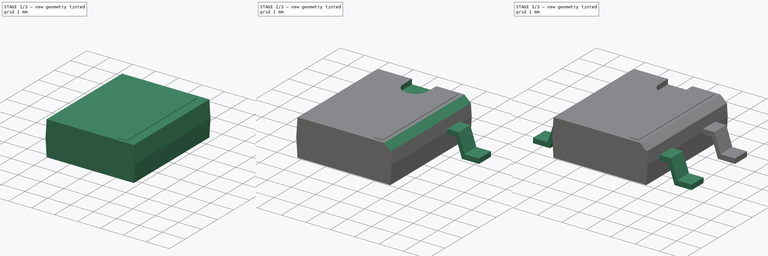
[diagram: build sequence overview — one tinted view per stage of 3, left to right]
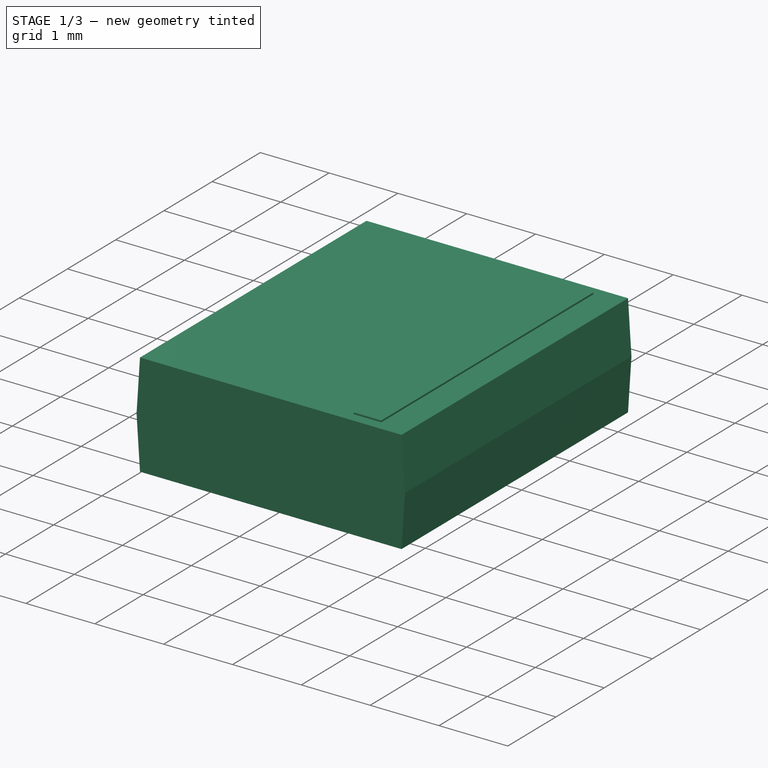
[diagram: stage 1 of 3 — iso view after this stage's code; geometry added in this stage tinted green]
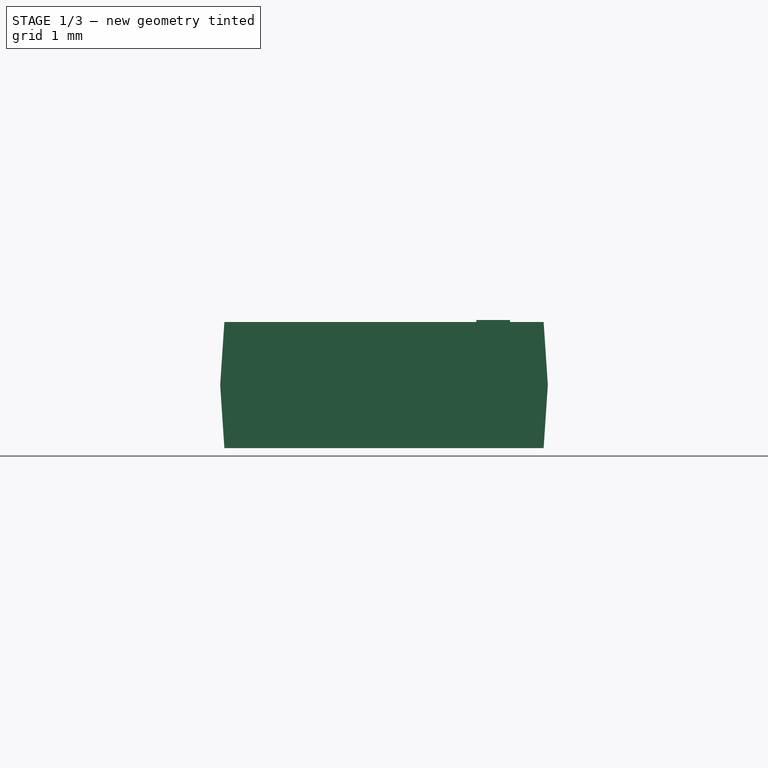
[diagram: stage 1 of 3 — front view after this stage's code; geometry added in this stage tinted green]
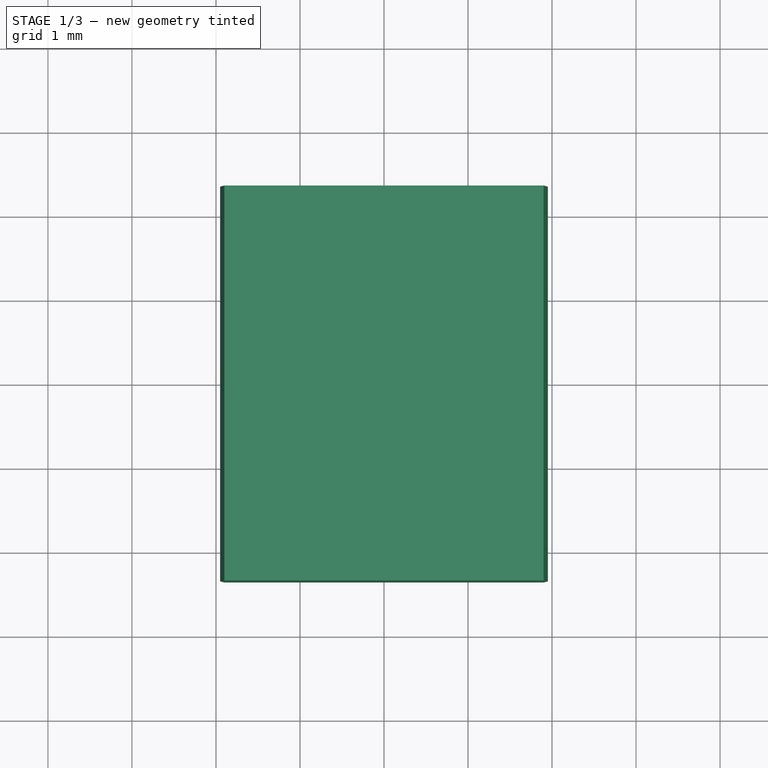
[diagram: stage 1 of 3 — top view after this stage's code; geometry added in this stage tinted green]
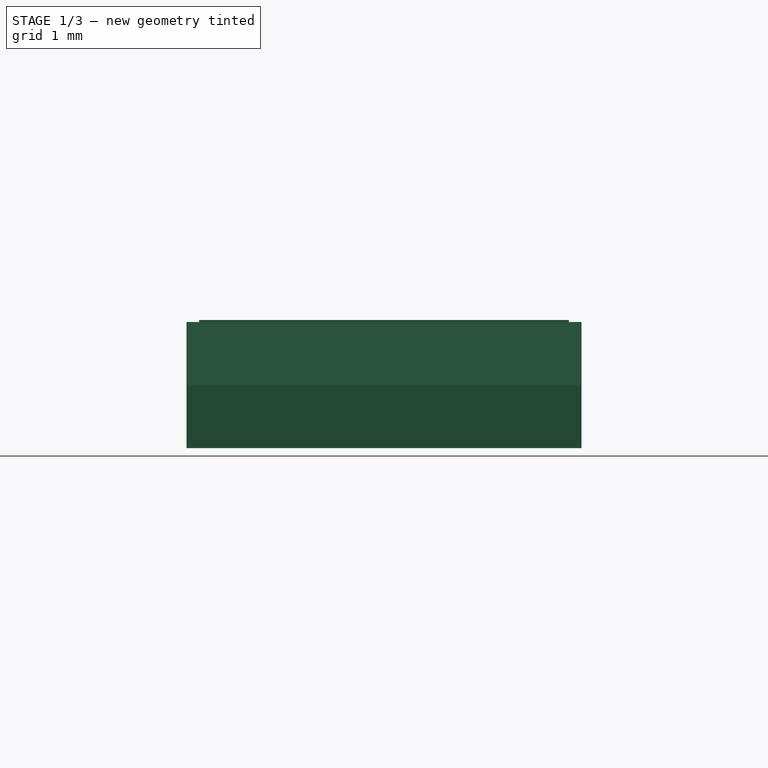
[diagram: stage 1 of 3 — right view after this stage's code; geometry added in this stage tinted green]
FCSTD DOCUMENT  (FreeCAD 0.16R6712 (Git))
Label: TO-269AA
License: All rights reserved
LicenseURL: http://en.wikipedia.org/wiki/All_rights_reserved
objects: Sketcher::SketchObject×5, PartDesign::Pad×4, PartDesign::Chamfer×1, PartDesign::Pocket×1, Part::MultiFuse×1
note: 17 computed .brp shape members not serialized (recipe doc carries the construction recipe); baked Part::Feature solids carry a one-line shape summary decoded from their .brp

FEATURE [Sketcher::SketchObject] Sketch
  Placement = pos=(0,0,0) rot=(1,0,0;1.5708rad)
  sketch-geometry (9):
    g0: LineSegment StartX=-1.9 StartY=0.1 StartZ=0 EndX=1.9 EndY=0.1 EndZ=0
    g1: LineSegment StartX=1.9 StartY=0.1 StartZ=0 EndX=1.95 EndY=0.85 EndZ=0
    g2: LineSegment StartX=1.95 StartY=0.85 StartZ=0 EndX=1.9 EndY=1.6 EndZ=0
    g3: LineSegment StartX=1.9 StartY=1.6 StartZ=0 EndX=-1.9 EndY=1.6 EndZ=0
    g4: LineSegment StartX=-1.9 StartY=1.6 StartZ=0 EndX=-1.95 EndY=0.85 EndZ=0
    g5: LineSegment StartX=-1.95 StartY=0.85 StartZ=0 EndX=-1.9 EndY=0.1 EndZ=0
    g6: LineSegment [constr] StartX=-1.95 StartY=0.85 StartZ=0 EndX=1.95 EndY=0.85 EndZ=0
    g7: LineSegment [constr] StartX=0 StartY=1.6 StartZ=0 EndX=0 EndY=0.1 EndZ=0
    g8: GeomPoint [constr] X=0 Y=0.85 Z=0
  constraints (26):
    c: Horizontal(g0)
    c: Coincident(g1,g0)
    c: Coincident(g2,g1)
    c: Coincident(g3,g2)
    c: Horizontal(g3)
    c: Coincident(g4,g3)
    c: Coincident(g5,g4)
    c: Coincident(g5,g0)
    c: Coincident(g6,g4)
    c: Coincident(g6,g1)
    c: Horizontal(g6)
    c: PointOnObject(g7,g3)
    c: PointOnObject(g7,g0)
    c: Vertical(g7)
    c: PointOnObject(g8,g6)
    c: PointOnObject(g8,g7)
    c: Symmetric(g7,g7,g8)
    c: Symmetric(g6,g6,g8)
    c: Symmetric(g3,g3,g7)
    c: Symmetric(g0,g0,g7)
    c: DistanceX(g0,g0) = 3.8
    c: Equal(g3,g0)
    c: DistanceX(g6,g6) = 3.9
    c: PointOnObject(g8,g-2)
    c: DistanceY(g0,g2) = 1.5
    c: DistanceY(g-1,g0) = 0.1
FEATURE [PartDesign::Pad] Pad
  Length = 4.7
  Length2 = 100
  Midplane = true
  Placement = pos=(0,0,0) rot=(1,0,0;1.5708rad)
  Sketch = -> Sketch
  Type = 0
FEATURE [Sketcher::SketchObject] Sketch005
  Placement = pos=(0,0,1.55) rot=(0,0,1;0rad)
  sketch-geometry (4):
    g0: LineSegment StartX=1.1 StartY=2.2 StartZ=0 EndX=1.5 EndY=2.2 EndZ=0
    g1: LineSegment StartX=1.5 StartY=2.2 StartZ=0 EndX=1.5 EndY=-2.2 EndZ=0
    g2: LineSegment StartX=1.5 StartY=-2.2 StartZ=0 EndX=1.1 EndY=-2.2 EndZ=0
    g3: LineSegment StartX=1.1 StartY=-2.2 StartZ=0 EndX=1.1 EndY=2.2 EndZ=0
  constraints (12):
    c: Coincident(g0,g1)
    c: Coincident(g1,g2)
    c: Coincident(g2,g3)
    c: Coincident(g3,g0)
    c: Horizontal(g0)
    c: Horizontal(g2)
    c: Vertical(g1)
    c: Vertical(g3)
    c: DistanceX(g0,g0) = 0.4
    c: DistanceY(g3,g3) = 4.4
    c: DistanceX(g0,g-1) = -1.5
    c: DistanceY(g2,g-1) = 2.2
FEATURE [PartDesign::Pad] Pad004
  Length = 0.075
  Length2 = 100
  Placement = pos=(0,0,1.55) rot=(0,0,1;0rad)
  Sketch = -> Sketch005
  Type = 0
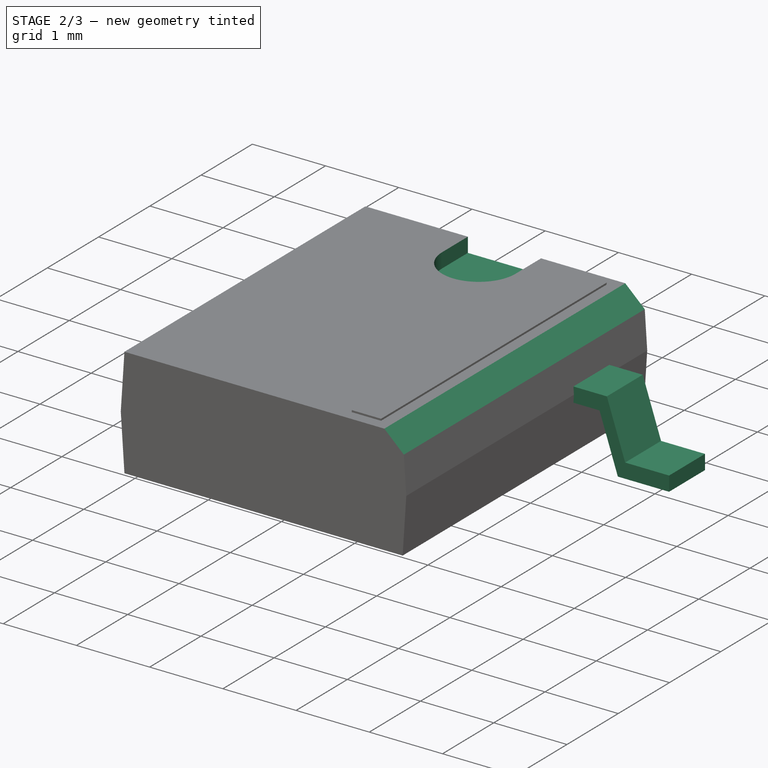
[diagram: stage 2 of 3 — iso view after this stage's code; geometry added in this stage tinted green]
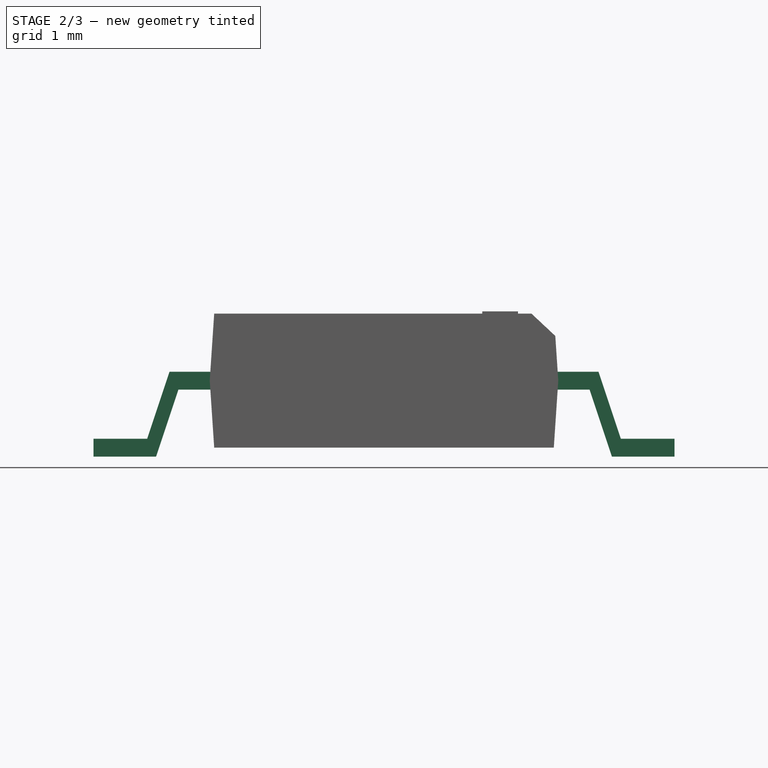
[diagram: stage 2 of 3 — front view after this stage's code; geometry added in this stage tinted green]
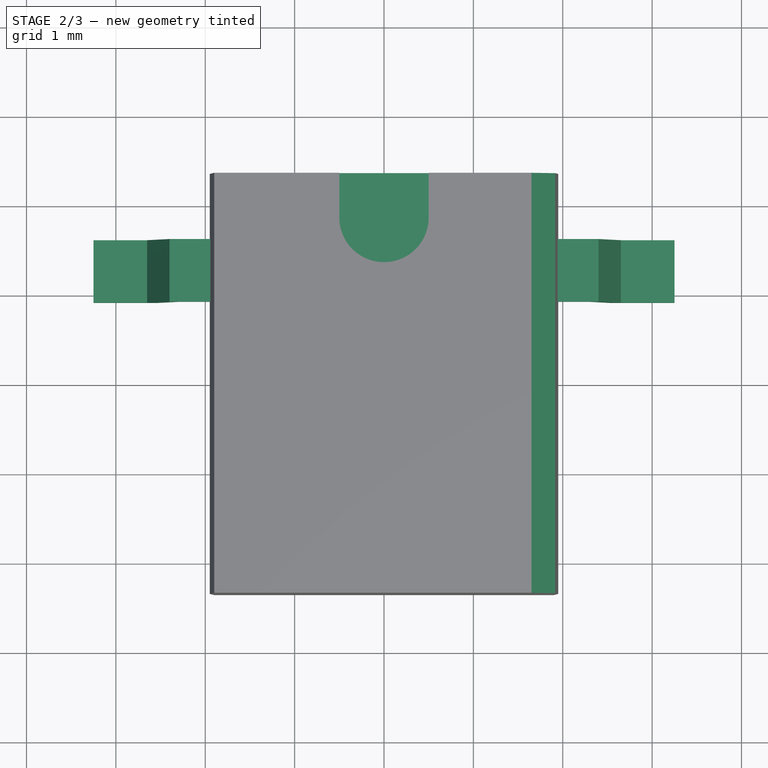
[diagram: stage 2 of 3 — top view after this stage's code; geometry added in this stage tinted green]
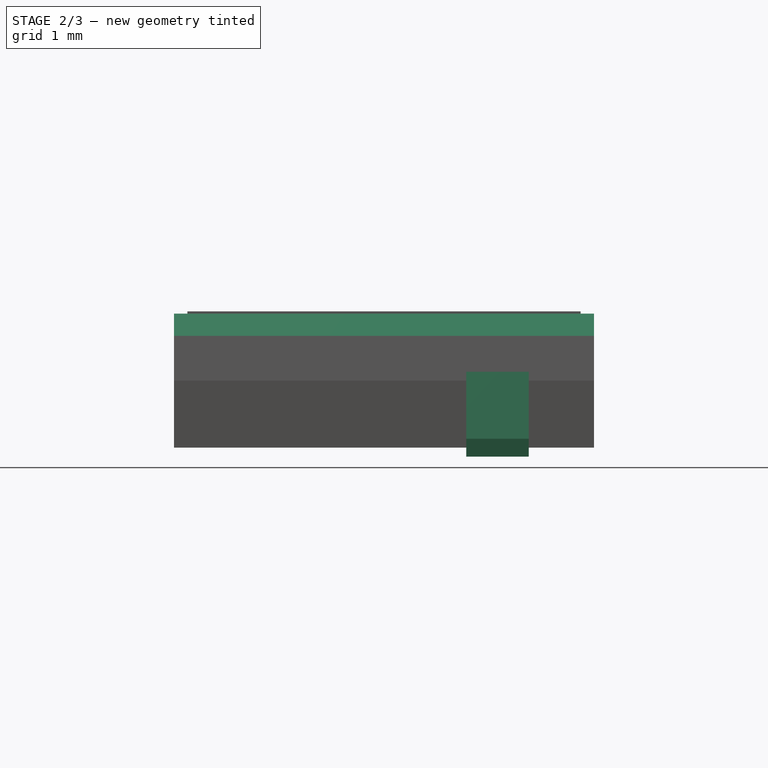
[diagram: stage 2 of 3 — right view after this stage's code; geometry added in this stage tinted green]
FEATURE [Sketcher::SketchObject] Sketch003
  Placement = pos=(0,1.27,0) rot=(1,0,0;1.5708rad)
  expr: Placement.Base.y = 1.27
  sketch-geometry (14):
    g0: LineSegment StartX=-3.25 StartY=0 StartZ=0 EndX=-2.55 EndY=0 EndZ=0
    g1: LineSegment StartX=-2.65 StartY=0.2 StartZ=0 EndX=-3.25 EndY=0.2 EndZ=0
    g2: LineSegment StartX=-3.25 StartY=0.2 StartZ=0 EndX=-3.25 EndY=0 EndZ=0
    g3: LineSegment StartX=3.25 StartY=0 StartZ=0 EndX=2.55 EndY=0 EndZ=0
    g4: LineSegment StartX=2.65 StartY=0.2 StartZ=0 EndX=3.25 EndY=0.2 EndZ=0
    g5: LineSegment StartX=3.25 StartY=0.2 StartZ=0 EndX=3.25 EndY=0 EndZ=0
    g6: LineSegment StartX=-2.4 StartY=0.95 StartZ=0 EndX=2.4 EndY=0.95 EndZ=0
    g7: LineSegment StartX=2.3 StartY=0.75 StartZ=0 EndX=-2.3 EndY=0.75 EndZ=0
    g8: GeomPoint [constr] X=0 Y=0.95 Z=0
    g9: GeomPoint [constr] X=0 Y=0.75 Z=0
    g10: LineSegment StartX=-2.65 StartY=0.2 StartZ=0 EndX=-2.4 EndY=0.95 EndZ=0
    g11: LineSegment StartX=-2.55 StartY=0 StartZ=0 EndX=-2.3 EndY=0.75 EndZ=0
    g12: LineSegment StartX=2.3 StartY=0.75 StartZ=0 EndX=2.55 EndY=0 EndZ=0
    g13: LineSegment StartX=2.65 StartY=0.2 StartZ=0 EndX=2.4 EndY=0.95 EndZ=0
  constraints (37):
    c: Coincident(g1,g2)
    c: Coincident(g2,g0)
    c: Horizontal(g0)
    c: Horizontal(g1)
    c: Vertical(g2)
    c: PointOnObject(g0,g-1)
    c: Coincident(g4,g5)
    c: Coincident(g5,g3)
    c: Horizontal(g4)
    c: Vertical(g5)
    c: PointOnObject(g3,g-1)
    c: Horizontal(g6)
    c: Horizontal(g7)
    c: Equal(g0,g3)
    c: Equal(g5,g2)
    c: Equal(g1,g4)
    c: DistanceY(g5,g5) = 0.2
    c: Symmetric(g0,g3,g-1)
    c: DistanceY(g7,g6) = 0.2
    c: PointOnObject(g8,g-2)
    c: PointOnObject(g9,g-2)
    c: Symmetric(g7,g7,g9)
    c: Symmetric(g6,g6,g8)
    c: Coincident(g10,g1)
    c: Coincident(g10,g6)
    c: Coincident(g11,g7)
    c: Coincident(g11,g0)
    c: Coincident(g12,g7)
    c: Coincident(g12,g3)
    c: Coincident(g13,g4)
    c: Coincident(g13,g6)
    c: Parallel(g12,g13)
    c: DistanceY(g-1,g9) = 0.75
    c: DistanceX(g0,g3) = 6.5
    c: DistanceX(g0,g3) = 5.1
    c: DistanceX(g1,g1) = 0.6
    c: DistanceX(g6,g6) = 4.8
FEATURE [PartDesign::Pad] Pad003
  Length = 0.7
  Length2 = 100
  Midplane = true
  Placement = pos=(0,1.27,0) rot=(1,0,0;1.5708rad)
  Sketch = -> Sketch003
  Type = 0
FEATURE [PartDesign::Chamfer] Chamfer
  Base = -> Pad [Edge8]
  Placement = pos=(0,0,0) rot=(1,0,0;1.5708rad)
  Size = 0.25
FEATURE [Sketcher::SketchObject] Sketch004
  ExternalGeometry = -> [Chamfer]
  Placement = pos=(0,0,1.6) rot=(0,0,1;3.14159rad)
  Support = -> Chamfer [Face6]
  sketch-geometry (5):
    g0: LineSegment [constr] StartX=-1.95 StartY=-1.85 StartZ=0 EndX=1.95 EndY=-1.85 EndZ=0
    g1: ArcOfCircle CenterX=0 CenterY=-1.85 CenterZ=0 NormalX=0 NormalY=0 NormalZ=1 Radius=0.5 StartAngle=0 EndAngle=3.14159
    g2: LineSegment StartX=-0.5 StartY=-1.85 StartZ=0 EndX=-0.5 EndY=-2.35 EndZ=0
    g3: LineSegment StartX=-0.5 StartY=-2.35 StartZ=0 EndX=0.5 EndY=-2.35 EndZ=0
    g4: LineSegment StartX=0.5 StartY=-2.35 StartZ=0 EndX=0.5 EndY=-1.85 EndZ=0
  constraints (17):
    c: PointOnObject(g0,g-5)
    c: PointOnObject(g0,g-4)
    c: Horizontal(g0)
    c: PointOnObject(g1,g0)
    c: PointOnObject(g1,g0)
    c: PointOnObject(g1,g0)
    c: PointOnObject(g1,g-2)
    c: Coincident(g2,g1)
    c: PointOnObject(g2,g-3)
    c: Vertical(g2)
    c: Coincident(g3,g2)
    c: PointOnObject(g3,g-3)
    c: Coincident(g4,g3)
    c: Coincident(g4,g1)
    c: Vertical(g4)
    c: DistanceX(g1,g1) = 1
    c: DistanceY(g3,g1) = 0.5
FEATURE [PartDesign::Pocket] Pocket
  Length = 0.2
  Placement = pos=(0,0,0) rot=(1,0,0;1.5708rad)
  Sketch = -> Sketch004
  Type = 0
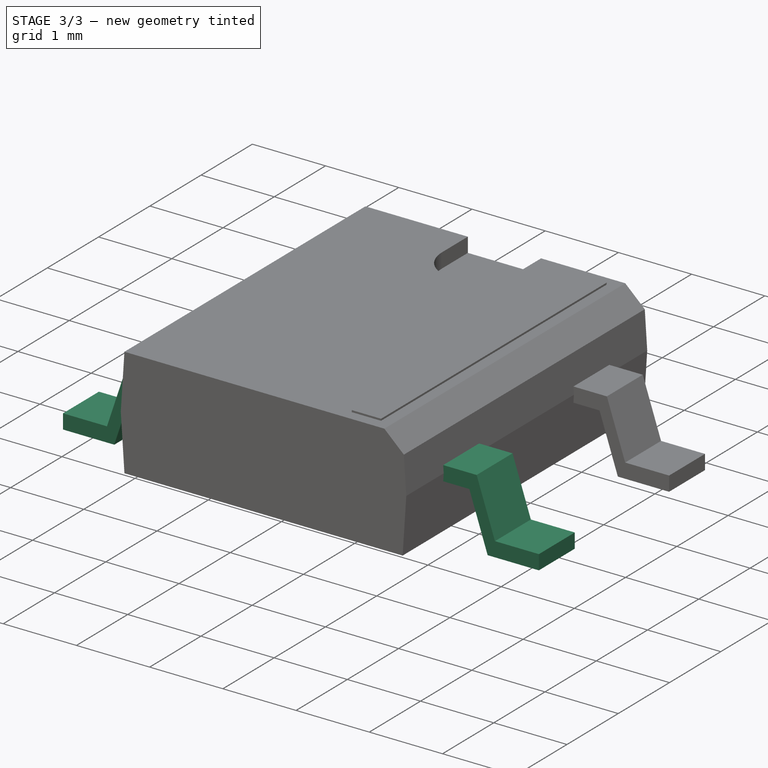
[diagram: stage 3 of 3 — iso view after this stage's code; geometry added in this stage tinted green]
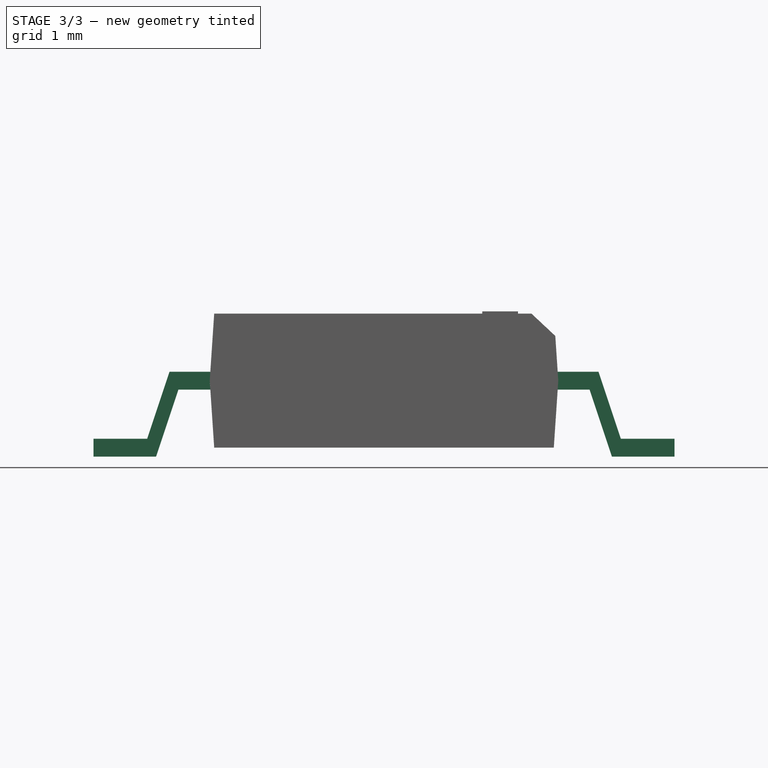
[diagram: stage 3 of 3 — front view after this stage's code; geometry added in this stage tinted green]
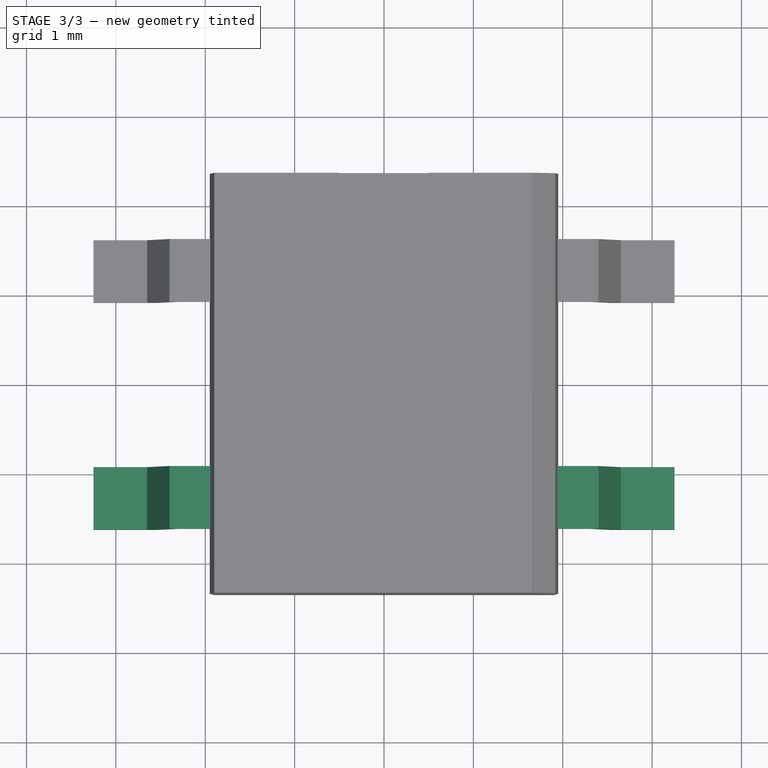
[diagram: stage 3 of 3 — top view after this stage's code; geometry added in this stage tinted green]
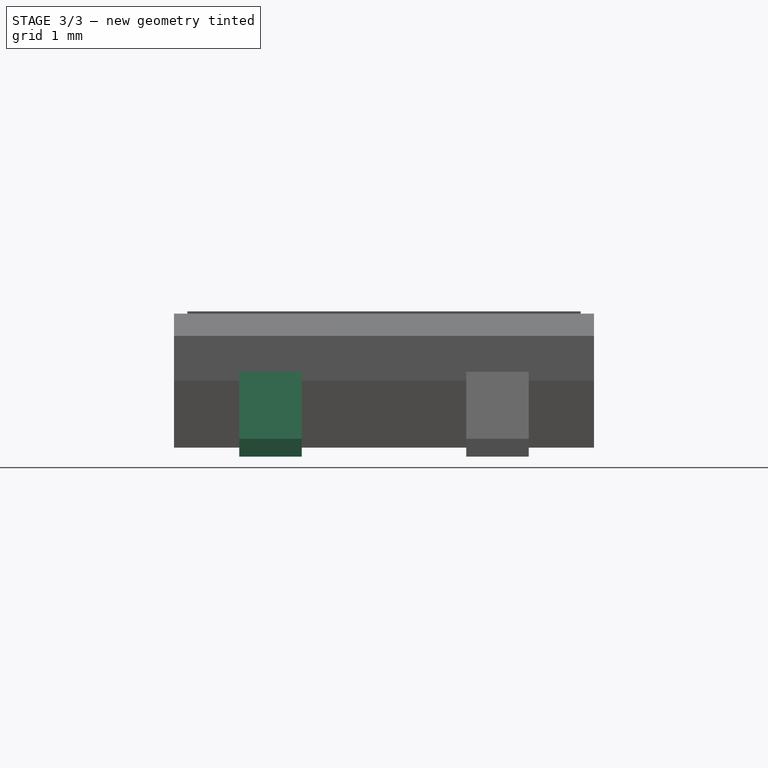
[diagram: stage 3 of 3 — right view after this stage's code; geometry added in this stage tinted green]
FEATURE [Sketcher::SketchObject] Sketch002
  Placement = pos=(0,-1.27,0) rot=(1,0,0;1.5708rad)
  expr: Placement.Base.y = -1.27
  sketch-geometry (14):
    g0: LineSegment StartX=-3.25 StartY=0 StartZ=0 EndX=-2.55 EndY=0 EndZ=0
    g1: LineSegment StartX=-2.65 StartY=0.2 StartZ=0 EndX=-3.25 EndY=0.2 EndZ=0
    g2: LineSegment StartX=-3.25 StartY=0.2 StartZ=0 EndX=-3.25 EndY=0 EndZ=0
    g3: LineSegment StartX=3.25 StartY=0 StartZ=0 EndX=2.55 EndY=0 EndZ=0
    g4: LineSegment StartX=2.65 StartY=0.2 StartZ=0 EndX=3.25 EndY=0.2 EndZ=0
    g5: LineSegment StartX=3.25 StartY=0.2 StartZ=0 EndX=3.25 EndY=0 EndZ=0
    g6: LineSegment StartX=-2.4 StartY=0.95 StartZ=0 EndX=2.4 EndY=0.95 EndZ=0
    g7: LineSegment StartX=2.3 StartY=0.75 StartZ=0 EndX=-2.3 EndY=0.75 EndZ=0
    g8: GeomPoint [constr] X=0 Y=0.95 Z=0
    g9: GeomPoint [constr] X=0 Y=0.75 Z=0
    g10: LineSegment StartX=-2.65 StartY=0.2 StartZ=0 EndX=-2.4 EndY=0.95 EndZ=0
    g11: LineSegment StartX=-2.55 StartY=0 StartZ=0 EndX=-2.3 EndY=0.75 EndZ=0
    g12: LineSegment StartX=2.3 StartY=0.75 StartZ=0 EndX=2.55 EndY=0 EndZ=0
    g13: LineSegment StartX=2.65 StartY=0.2 StartZ=0 EndX=2.4 EndY=0.95 EndZ=0
  constraints (37):
    c: Coincident(g1,g2)
    c: Coincident(g2,g0)
    c: Horizontal(g0)
    c: Horizontal(g1)
    c: Vertical(g2)
    c: PointOnObject(g0,g-1)
    c: Coincident(g4,g5)
    c: Coincident(g5,g3)
    c: Horizontal(g4)
    c: Vertical(g5)
    c: PointOnObject(g3,g-1)
    c: Horizontal(g6)
    c: Horizontal(g7)
    c: Equal(g0,g3)
    c: Equal(g5,g2)
    c: Equal(g1,g4)
    c: DistanceY(g5,g5) = 0.2
    c: Symmetric(g0,g3,g-1)
    c: DistanceY(g7,g6) = 0.2
    c: PointOnObject(g8,g-2)
    c: PointOnObject(g9,g-2)
    c: Symmetric(g7,g7,g9)
    c: Symmetric(g6,g6,g8)
    c: Coincident(g10,g1)
    c: Coincident(g10,g6)
    c: Coincident(g11,g7)
    c: Coincident(g11,g0)
    c: Coincident(g12,g7)
    c: Coincident(g12,g3)
    c: Coincident(g13,g4)
    c: Coincident(g13,g6)
    c: Parallel(g12,g13)
    c: DistanceY(g-1,g9) = 0.75
    c: DistanceX(g0,g3) = 6.5
    c: DistanceX(g0,g3) = 5.1
    c: DistanceX(g1,g1) = 0.6
    c: DistanceX(g6,g6) = 4.8
FEATURE [PartDesign::Pad] Pad002
  Length = 0.7
  Length2 = 100
  Midplane = true
  Placement = pos=(0,-1.27,0) rot=(1,0,0;1.5708rad)
  Sketch = -> Sketch002
  Type = 0
FEATURE [Part::MultiFuse] Pad004_mp_cp  label="TO-269AA"
  Shapes = -> [Pad004,Pocket,Pad003,Pad002]
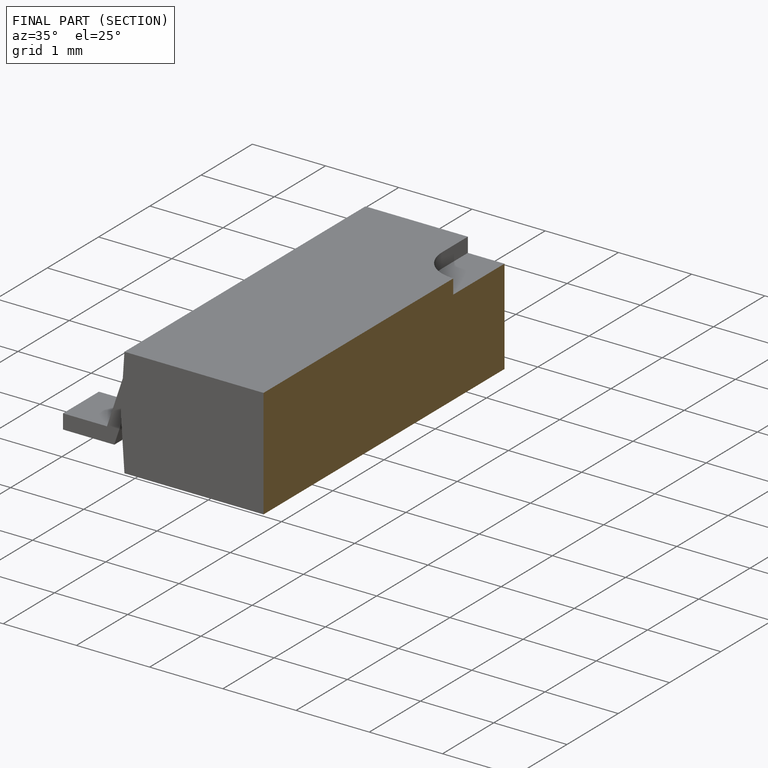
[diagram: finished part — half-section view (interior)]
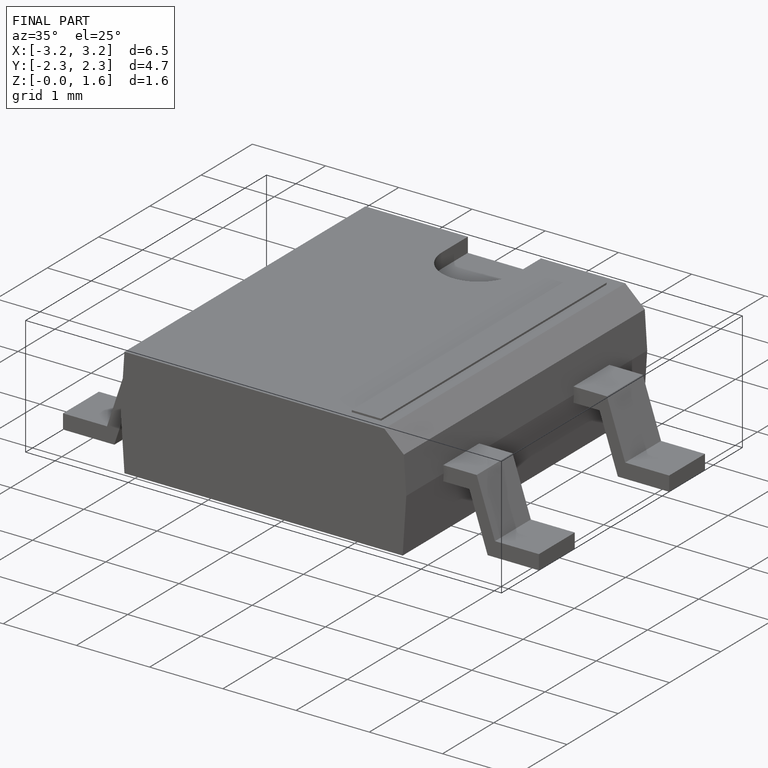
[diagram: finished part — iso view with bounding-box wireframe]
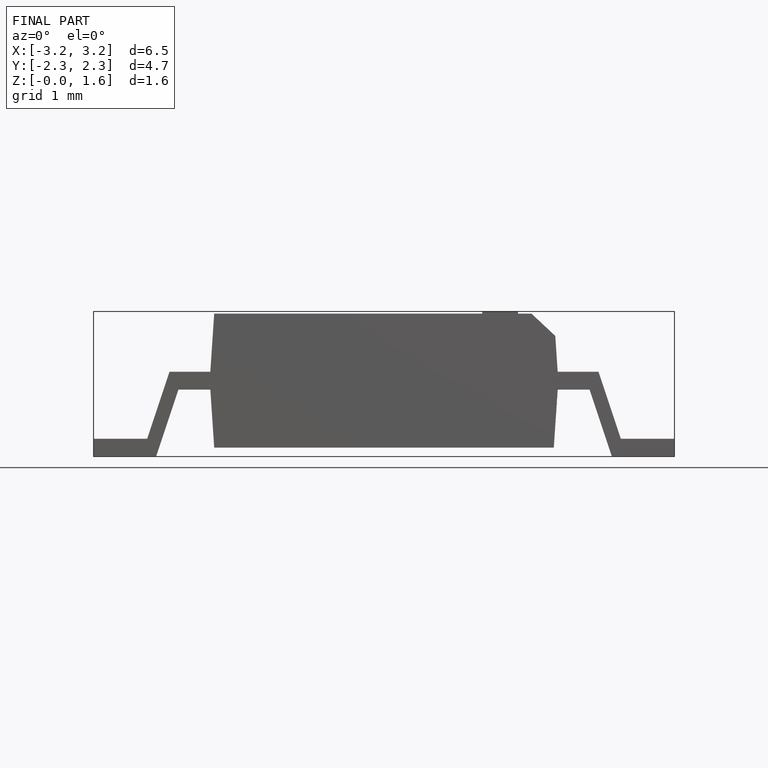
[diagram: finished part — front view with bounding-box wireframe]
